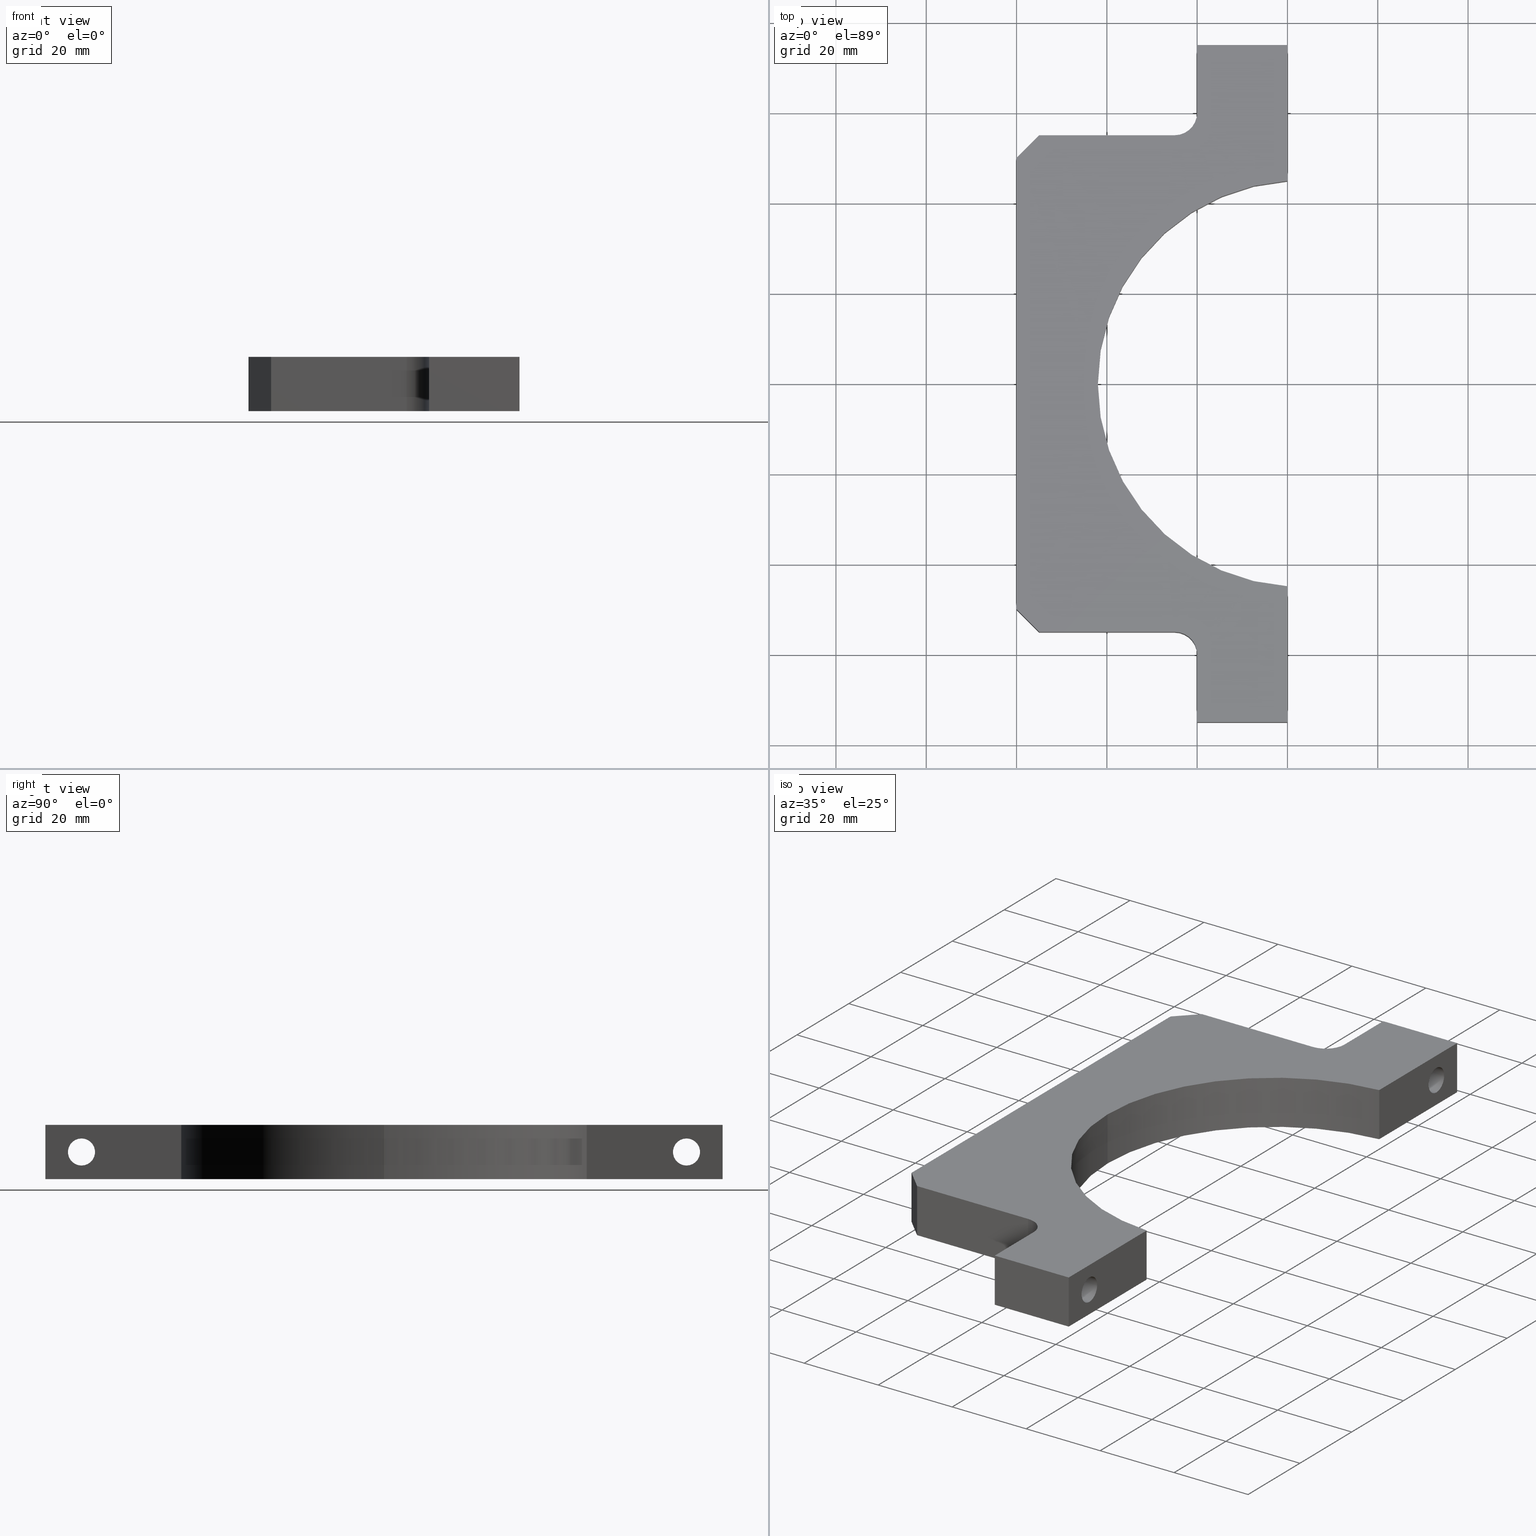
[diagram: canonical four-view strip — front | top / right | iso, engineering-drawing reading convention]
A machine part, canonical four-view strip (front | top / right | iso — engineering-drawing reading convention). The complete STEP part file that produces these views, byte-faithful:
ISO-10303-21;
HEADER;
FILE_DESCRIPTION (( 'STEP AP214' ),
    '1' );
FILE_NAME ('TubeClampTop.STEP',
    '2015-06-11T08:31:04',
    ( '' ),
    ( '' ),
    'SwSTEP 2.0',
    'SolidWorks 2014',
    '' );
FILE_SCHEMA (( 'AUTOMOTIVE_DESIGN' ));
ENDSEC;

DATA;
#1 = ADVANCED_FACE ( 'NONE', ( #332, #558 ), #161, .F. ) ;
#2 = CARTESIAN_POINT ( 'NONE',  ( 0.0000000000000000000, 55.00000000000000700, -6.000000000000000000 ) ) ;
#3 = CARTESIAN_POINT ( 'NONE',  ( 39.99999999999999300, -75.00000000000001400, 6.000000000000000000 ) ) ;
#4 = CARTESIAN_POINT ( 'NONE',  ( 60.00000000000000700, 44.89988864128730500, 6.000000000000000000 ) ) ;
#5 = ADVANCED_FACE ( 'NONE', ( #329, #322 ), #69, .F. ) ;
#6 = PRESENTATION_STYLE_ASSIGNMENT (( #140 ) ) ;
#7 = DIRECTION ( 'NONE',  ( 0.0000000000000000000, 0.0000000000000000000, -1.000000000000000000 ) ) ;
#8 = DIRECTION ( 'NONE',  ( 1.000000000000000000, 0.0000000000000000000, 0.0000000000000000000 ) ) ;
#9 = DIRECTION ( 'NONE',  ( -0.0000000000000000000, 0.0000000000000000000, -1.000000000000000000 ) ) ;
#10 = CARTESIAN_POINT ( 'NONE',  ( 63.00000000000000000, 0.0000000000000000000, 6.000000000000000000 ) ) ;
#11 = CARTESIAN_POINT ( 'NONE',  ( -0.001000000000001000100, 67.00000000000001400, -3.673940397442066800E-016 ) ) ;
#12 = CARTESIAN_POINT ( 'NONE',  ( 17.99999999999999600, 0.0000000000000000000, 6.000000000000000000 ) ) ;
#13 = CARTESIAN_POINT ( 'NONE',  ( 60.00000000000000000, -75.00000000000001400, -6.000000000000000000 ) ) ;
#14 = CARTESIAN_POINT ( 'NONE',  ( 34.99999999999999300, -55.00000000000000700, -6.000000000000000000 ) ) ;
#15 = STYLED_ITEM ( 'NONE', ( #6 ), #33 ) ;
#16 = DIRECTION ( 'NONE',  ( 0.7071067811865455700, -0.7071067811865495700, 0.0000000000000000000 ) ) ;
#17 = DIRECTION ( 'NONE',  ( -0.0000000000000000000, -0.0000000000000000000, -1.000000000000000000 ) ) ;
#18 = CARTESIAN_POINT ( 'NONE',  ( 5.000000000000019500, 55.00000000000000700, 6.000000000000000000 ) ) ;
#19 = CARTESIAN_POINT ( 'NONE',  ( 60.00000000000000000, 75.00000000000001400, 6.000000000000000000 ) ) ;
#20 = CARTESIAN_POINT ( 'NONE',  ( 0.0000000000000000000, -55.00000000000000700, -6.000000000000000000 ) ) ;
#21 = DIRECTION ( 'NONE',  ( -0.0000000000000000000, -0.0000000000000000000, -1.000000000000000000 ) ) ;
#22 = PLANE ( 'NONE',  #409 ) ;
#23 = CARTESIAN_POINT ( 'NONE',  ( 60.00000000000000000, 75.00000000000001400, 6.000000000000000000 ) ) ;
#24 = DIRECTION ( 'NONE',  ( 1.000000000000000000, 0.0000000000000000000, 0.0000000000000000000 ) ) ;
#25 = ADVANCED_FACE ( 'NONE', ( #326 ), #152, .F. ) ;
#26 = DIRECTION ( 'NONE',  ( -0.0000000000000000000, -0.0000000000000000000, -1.000000000000000000 ) ) ;
#27 = AXIS2_PLACEMENT_3D ( 'NONE', #402, #471, #461 ) ;
#28 = DIRECTION ( 'NONE',  ( -0.0000000000000000000, 0.0000000000000000000, 1.000000000000000000 ) ) ;
#29 = ADVANCED_FACE ( 'NONE', ( #320 ), #665, .F. ) ;
#30 = CARTESIAN_POINT ( 'NONE',  ( 34.99999999999999300, -55.00000000000000700, 6.000000000000000000 ) ) ;
#31 = CARTESIAN_POINT ( 'NONE',  ( 63.00000000000000000, 0.0000000000000000000, -6.000000000000000000 ) ) ;
#32 = DIRECTION ( 'NONE',  ( -1.000000000000000000, -0.0000000000000000000, -0.0000000000000000000 ) ) ;
#33 = ADVANCED_BREP_SHAPE_REPRESENTATION ( 'TubeClampTop', ( #481, #201 ), #37 ) ;
#34 = DIRECTION ( 'NONE',  ( 0.0000000000000000000, 0.0000000000000000000, -1.000000000000000000 ) ) ;
#35 = DIRECTION ( 'NONE',  ( 1.000000000000000000, 0.0000000000000000000, 0.0000000000000000000 ) ) ;
#36 = CARTESIAN_POINT ( 'NONE',  ( 60.00000000000001400, 67.00000000000001400, -3.673940397442066800E-016 ) ) ;
#37 =( GEOMETRIC_REPRESENTATION_CONTEXT ( 3 ) GLOBAL_UNCERTAINTY_ASSIGNED_CONTEXT ( ( #97 ) ) GLOBAL_UNIT_ASSIGNED_CONTEXT ( ( #476, #458, #399 ) ) REPRESENTATION_CONTEXT ( 'NONE', 'WORKASPACE' ) );
#38 = CARTESIAN_POINT ( 'NONE',  ( 60.00000000000000000, 75.00000000000001400, -6.000000000000000000 ) ) ;
#39 = CARTESIAN_POINT ( 'NONE',  ( 60.00000000000000000, 75.00000000000001400, 6.000000000000000000 ) ) ;
#40 = CARTESIAN_POINT ( 'NONE',  ( 5.000000000000022200, 55.00000000000000700, 6.000000000000000000 ) ) ;
#41 = DIRECTION ( 'NONE',  ( 1.000000000000000000, 0.0000000000000000000, 0.0000000000000000000 ) ) ;
#42 = CARTESIAN_POINT ( 'NONE',  ( 60.00000000000000000, 75.00000000000001400, -6.000000000000000000 ) ) ;
#43 = APPLICATION_PROTOCOL_DEFINITION ( 'draft international standard', 'automotive_design', 1998, #58 ) ;
#44 = PLANE ( 'NONE',  #389 ) ;
#45 = CARTESIAN_POINT ( 'NONE',  ( 6.499999999999832100, -56.49999999999985100, 6.000000000000000000 ) ) ;
#46 = DIRECTION ( 'NONE',  ( -0.0000000000000000000, -0.0000000000000000000, -1.000000000000000000 ) ) ;
#47 = CARTESIAN_POINT ( 'NONE',  ( 63.00000000000000000, 0.0000000000000000000, -6.000000000000000000 ) ) ;
#48 = CARTESIAN_POINT ( 'NONE',  ( 34.99999999999999300, 55.00000000000000700, 6.000000000000000000 ) ) ;
#49 = AXIS2_PLACEMENT_3D ( 'NONE', #65, #53, #51 ) ;
#50 = CARTESIAN_POINT ( 'NONE',  ( 60.00000000000000700, 44.89988864128730500, 6.000000000000000000 ) ) ;
#51 = DIRECTION ( 'NONE',  ( 0.0000000000000000000, -0.0000000000000000000, -1.000000000000000000 ) ) ;
#52 = CARTESIAN_POINT ( 'NONE',  ( 0.0000000000000000000, -49.99999999999998600, 6.000000000000000000 ) ) ;
#53 = DIRECTION ( 'NONE',  ( 0.0000000000000000000, -1.000000000000000000, 0.0000000000000000000 ) ) ;
#54 = CARTESIAN_POINT ( 'NONE',  ( 5.000000000000019500, 55.00000000000000700, -6.000000000000000000 ) ) ;
#55 = PLANE ( 'NONE',  #49 ) ;
#56 = ADVANCED_FACE ( 'NONE', ( #319 ), #313, .F. ) ;
#57 = CARTESIAN_POINT ( 'NONE',  ( 39.99999999999999300, -67.00000000000001400, -3.000000000000003100 ) ) ;
#58 = APPLICATION_CONTEXT ( 'automotive_design' ) ;
#59 = DIRECTION ( 'NONE',  ( 2.305271838105247500E-016, -1.000000000000000000, 0.0000000000000000000 ) ) ;
#60 = DIRECTION ( 'NONE',  ( 2.305271838105247500E-016, 1.000000000000000000, 0.0000000000000000000 ) ) ;
#61 = CARTESIAN_POINT ( 'NONE',  ( 0.0000000000000000000, 50.00000000000001400, 6.000000000000000000 ) ) ;
#62 = DIRECTION ( 'NONE',  ( -2.305271838105247500E-016, 1.000000000000000000, -0.0000000000000000000 ) ) ;
#63 = CARTESIAN_POINT ( 'NONE',  ( -0.001000000000001000100, -67.00000000000001400, -6.123233995736806700E-016 ) ) ;
#64 = DIRECTION ( 'NONE',  ( -0.0000000000000000000, -0.0000000000000000000, -1.000000000000000000 ) ) ;
#65 = CARTESIAN_POINT ( 'NONE',  ( 0.0000000000000000000, 55.00000000000000700, 6.000000000000000000 ) ) ;
#66 = DIRECTION ( 'NONE',  ( -1.000000000000000000, -2.305271838105247500E-016, 0.0000000000000000000 ) ) ;
#67 = AXIS2_PLACEMENT_3D ( 'NONE', #31, #26, #24 ) ;
#68 = DIRECTION ( 'NONE',  ( -0.0000000000000000000, -0.0000000000000000000, -1.000000000000000000 ) ) ;
#69 = PLANE ( 'NONE',  #446 ) ;
#70 = DIRECTION ( 'NONE',  ( 0.0000000000000000000, 0.0000000000000000000, -1.000000000000000000 ) ) ;
#71 = DIRECTION ( 'NONE',  ( 1.000000000000000000, 0.0000000000000000000, 0.0000000000000000000 ) ) ;
#72 = DIRECTION ( 'NONE',  ( -0.0000000000000000000, -0.0000000000000000000, -1.000000000000000000 ) ) ;
#73 = DIRECTION ( 'NONE',  ( 0.0000000000000000000, 0.0000000000000000000, -1.000000000000000000 ) ) ;
#74 = DIRECTION ( 'NONE',  ( 1.000000000000000000, 0.0000000000000000000, 0.0000000000000000000 ) ) ;
#75 = CARTESIAN_POINT ( 'NONE',  ( 0.0000000000000000000, 55.00000000000000700, 6.000000000000000000 ) ) ;
#76 = DIRECTION ( 'NONE',  ( -0.0000000000000000000, -0.0000000000000000000, -1.000000000000000000 ) ) ;
#77 = ADVANCED_FACE ( 'NONE', ( #328, #312 ), #548, .F. ) ;
#78 = CARTESIAN_POINT ( 'NONE',  ( 63.00000000000000000, 0.0000000000000000000, 6.000000000000000000 ) ) ;
#79 = PRODUCT_CONTEXT ( 'NONE', #378, 'mechanical' ) ;
#80 = DIRECTION ( 'NONE',  ( 1.000000000000000000, 0.0000000000000000000, 0.0000000000000000000 ) ) ;
#81 = VECTOR ( 'NONE', #576, 1000.000000000000000 ) ;
#82 = COLOUR_RGB ( '',1.000000000000000000, 1.000000000000000000, 1.000000000000000000 ) ;
#83 = VECTOR ( 'NONE', #586, 1000.000000000000000 ) ;
#84 = DIRECTION ( 'NONE',  ( 1.000000000000000000, -0.0000000000000000000, -0.0000000000000000000 ) ) ;
#85 = DIRECTION ( 'NONE',  ( 0.0000000000000000000, 0.0000000000000000000, 1.000000000000000000 ) ) ;
#86 = VECTOR ( 'NONE', #672, 1000.000000000000000 ) ;
#87 = ORIENTED_EDGE ( 'NONE', *, *, #480, .F. ) ;
#88 = VERTEX_POINT ( 'NONE', #551 ) ;
#89 = CARTESIAN_POINT ( 'NONE',  ( 60.00000000000001400, -67.00000000000001400, -6.123233995736806700E-016 ) ) ;
#90 = LINE ( 'NONE', #631, #83 ) ;
#91 = CARTESIAN_POINT ( 'NONE',  ( 60.00000000000000000, -75.00000000000001400, -6.000000000000000000 ) ) ;
#92 = ORIENTED_EDGE ( 'NONE', *, *, #590, .F. ) ;
#93 = LINE ( 'NONE', #30, #86 ) ;
#94 = CARTESIAN_POINT ( 'NONE',  ( 60.00000000000000700, -44.89988864128729800, 6.000000000000000000 ) ) ;
#95 = SHAPE_DEFINITION_REPRESENTATION ( #444, #33 ) ;
#96 = CARTESIAN_POINT ( 'NONE',  ( 60.00000000000000000, -75.00000000000001400, 6.000000000000000000 ) ) ;
#97 = UNCERTAINTY_MEASURE_WITH_UNIT (LENGTH_MEASURE( 1.000000000000000100E-005 ), #476, 'distance_accuracy_value', 'NONE');
#98 = DIRECTION ( 'NONE',  ( 2.305271838105247500E-016, 1.000000000000000000, 0.0000000000000000000 ) ) ;
#99 = CARTESIAN_POINT ( 'NONE',  ( 39.99999999999999300, -55.00000000000000700, 6.000000000000000000 ) ) ;
#100 = DIRECTION ( 'NONE',  ( 1.000000000000000000, 0.0000000000000000000, 0.0000000000000000000 ) ) ;
#101 = CARTESIAN_POINT ( 'NONE',  ( 39.99999999999999300, 67.00000000000001400, -3.000000000000001800 ) ) ;
#102 = VECTOR ( 'NONE', #674, 1000.000000000000000 ) ;
#103 = DIRECTION ( 'NONE',  ( -0.0000000000000000000, -0.0000000000000000000, -1.000000000000000000 ) ) ;
#104 = DIRECTION ( 'NONE',  ( -0.0000000000000000000, -1.000000000000000000, -0.0000000000000000000 ) ) ;
#105 = VECTOR ( 'NONE', #626, 1000.000000000000000 ) ;
#106 = PRESENTATION_STYLE_ASSIGNMENT (( #162 ) ) ;
#107 = CARTESIAN_POINT ( 'NONE',  ( 17.99999999999999600, 0.0000000000000000000, 6.000000000000000000 ) ) ;
#108 = COLOUR_RGB ( '',1.000000000000000000, 1.000000000000000000, 1.000000000000000000 ) ;
#109 = DIRECTION ( 'NONE',  ( 1.000000000000000000, 0.0000000000000000000, 0.0000000000000000000 ) ) ;
#110 = DIRECTION ( 'NONE',  ( 0.0000000000000000000, 0.0000000000000000000, -1.000000000000000000 ) ) ;
#111 = CARTESIAN_POINT ( 'NONE',  ( 60.00000000000000000, -75.00000000000001400, 6.000000000000000000 ) ) ;
#112 = LINE ( 'NONE', #676, #113 ) ;
#113 = VECTOR ( 'NONE', #523, 1000.000000000000000 ) ;
#114 = CARTESIAN_POINT ( 'NONE',  ( 39.99999999999999300, -55.00000000000000700, -6.000000000000000000 ) ) ;
#115 = CARTESIAN_POINT ( 'NONE',  ( 60.00000000000001400, -67.00000000000001400, 3.000000000000002200 ) ) ;
#116 = SURFACE_STYLE_FILL_AREA ( #296 ) ;
#117 = LINE ( 'NONE', #678, #102 ) ;
#118 = LINE ( 'NONE', #75, #120 ) ;
#119 = DIRECTION ( 'NONE',  ( 0.0000000000000000000, 0.0000000000000000000, -1.000000000000000000 ) ) ;
#120 = VECTOR ( 'NONE', #32, 1000.000000000000000 ) ;
#121 = ADVANCED_FACE ( 'NONE', ( #327, #311 ), #486, .F. ) ;
#122 = LINE ( 'NONE', #52, #81 ) ;
#123 = ORIENTED_EDGE ( 'NONE', *, *, #531, .F. ) ;
#124 = VERTEX_POINT ( 'NONE', #513 ) ;
#125 = LINE ( 'NONE', #107, #126 ) ;
#126 = VECTOR ( 'NONE', #68, 1000.000000000000000 ) ;
#127 =( NAMED_UNIT ( * ) SI_UNIT ( $, .STERADIAN. ) SOLID_ANGLE_UNIT ( ) );
#128 = DIRECTION ( 'NONE',  ( 1.000000000000000000, 0.0000000000000000000, 0.0000000000000000000 ) ) ;
#129 = LINE ( 'NONE', #18, #148 ) ;
#130 = CARTESIAN_POINT ( 'NONE',  ( 60.00000000000001400, 67.00000000000001400, -3.673940397442066800E-016 ) ) ;
#131 = CIRCLE ( 'NONE', #175, 3.000000000000001300 ) ;
#132 = VECTOR ( 'NONE', #223, 1000.000000000000000 ) ;
#133 =( NAMED_UNIT ( * ) PLANE_ANGLE_UNIT ( ) SI_UNIT ( $, .RADIAN. ) );
#134 = LINE ( 'NONE', #300, #150 ) ;
#135 = VECTOR ( 'NONE', #354, 1000.000000000000000 ) ;
#136 = ADVANCED_FACE ( 'NONE', ( #316 ), #304, .F. ) ;
#137 =( LENGTH_UNIT ( ) NAMED_UNIT ( * ) SI_UNIT ( .MILLI., .METRE. ) );
#138 = CIRCLE ( 'NONE', #214, 3.000000000000002700 ) ;
#139 = FACE_OUTER_BOUND ( 'NONE', #543, .T. ) ;
#140 = SURFACE_STYLE_USAGE ( .BOTH. , #290 ) ;
#141 = ORIENTED_EDGE ( 'NONE', *, *, #542, .T. ) ;
#142 = LINE ( 'NONE', #2, #147 ) ;
#143 = VECTOR ( 'NONE', #21, 1000.000000000000000 ) ;
#144 = LINE ( 'NONE', #50, #143 ) ;
#145 = LINE ( 'NONE', #465, #105 ) ;
#146 = DIRECTION ( 'NONE',  ( 1.000000000000000000, 0.0000000000000000000, -0.0000000000000000000 ) ) ;
#147 = VECTOR ( 'NONE', #633, 1000.000000000000000 ) ;
#148 = VECTOR ( 'NONE', #203, 1000.000000000000000 ) ;
#149 = CIRCLE ( 'NONE', #67, 45.00000000000001400 ) ;
#150 = VECTOR ( 'NONE', #172, 1000.000000000000000 ) ;
#151 = CIRCLE ( 'NONE', #173, 45.00000000000001400 ) ;
#152 = PLANE ( 'NONE',  #434 ) ;
#153 =( NAMED_UNIT ( * ) SI_UNIT ( $, .STERADIAN. ) SOLID_ANGLE_UNIT ( ) );
#154 = CYLINDRICAL_SURFACE ( 'NONE', #179, 3.000000000000001300 ) ;
#155 = FACE_OUTER_BOUND ( 'NONE', #342, .T. ) ;
#156 =( NAMED_UNIT ( * ) PLANE_ANGLE_UNIT ( ) SI_UNIT ( $, .RADIAN. ) );
#157 = LINE ( 'NONE', #220, #132 ) ;
#158 = LINE ( 'NONE', #351, #135 ) ;
#159 =( LENGTH_UNIT ( ) NAMED_UNIT ( * ) SI_UNIT ( .MILLI., .METRE. ) );
#160 = CIRCLE ( 'NONE', #247, 3.000000000000001300 ) ;
#161 = PLANE ( 'NONE',  #455 ) ;
#162 = SURFACE_STYLE_USAGE ( .BOTH. , #166 ) ;
#163 = VECTOR ( 'NONE', #557, 1000.000000000000000 ) ;
#164 = CIRCLE ( 'NONE', #237, 3.000000000000002700 ) ;
#165 = VECTOR ( 'NONE', #467, 1000.000000000000100 ) ;
#166 = SURFACE_SIDE_STYLE ('',( #257 ) ) ;
#167 = DIRECTION ( 'NONE',  ( -1.000000000000000000, -0.0000000000000000000, -0.0000000000000000000 ) ) ;
#168 = FACE_OUTER_BOUND ( 'NONE', #469, .T. ) ;
#169 = CYLINDRICAL_SURFACE ( 'NONE', #233, 45.00000000000000700 ) ;
#170 = FILL_AREA_STYLE ('',( #273 ) ) ;
#171 = LINE ( 'NONE', #514, #165 ) ;
#172 = DIRECTION ( 'NONE',  ( 1.000000000000000000, -0.0000000000000000000, -0.0000000000000000000 ) ) ;
#173 = AXIS2_PLACEMENT_3D ( 'NONE', #78, #76, #74 ) ;
#174 = VECTOR ( 'NONE', #511, 1000.000000000000100 ) ;
#175 = AXIS2_PLACEMENT_3D ( 'NONE', #130, #128, #119 ) ;
#176 = LINE ( 'NONE', #517, #174 ) ;
#177 = FACE_OUTER_BOUND ( 'NONE', #487, .T. ) ;
#178 = LINE ( 'NONE', #554, #163 ) ;
#179 = AXIS2_PLACEMENT_3D ( 'NONE', #441, #460, #400 ) ;
#180 = CIRCLE ( 'NONE', #248, 4.999999999999997300 ) ;
#181 = VECTOR ( 'NONE', #632, 1000.000000000000100 ) ;
#182 = CIRCLE ( 'NONE', #272, 4.999999999999997300 ) ;
#183 = VECTOR ( 'NONE', #708, 1000.000000000000000 ) ;
#184 = LINE ( 'NONE', #45, #181 ) ;
#185 = CARTESIAN_POINT ( 'NONE',  ( 39.99999999999999300, -75.00000000000001400, 6.000000000000000000 ) ) ;
#186 = CIRCLE ( 'NONE', #255, 4.999999999999997300 ) ;
#187 = DIRECTION ( 'NONE',  ( -1.000000000000000000, -0.0000000000000000000, -0.0000000000000000000 ) ) ;
#188 = VECTOR ( 'NONE', #104, 1000.000000000000000 ) ;
#189 = LINE ( 'NONE', #345, #188 ) ;
#190 = LINE ( 'NONE', #368, #192 ) ;
#191 = PRODUCT_RELATED_PRODUCT_CATEGORY ( 'part', '', ( #407 ) ) ;
#192 = VECTOR ( 'NONE', #28, 1000.000000000000000 ) ;
#193 = DIRECTION ( 'NONE',  ( 0.0000000000000000000, -0.0000000000000000000, 1.000000000000000000 ) ) ;
#194 = VECTOR ( 'NONE', #298, 1000.000000000000100 ) ;
#195 = PRODUCT_DEFINITION_FORMATION_WITH_SPECIFIED_SOURCE ( 'ANY', '', #407, .NOT_KNOWN. ) ;
#196 = LINE ( 'NONE', #661, #194 ) ;
#197 = PRODUCT_DEFINITION ( 'UNKNOWN', '', #195, #617 ) ;
#198 = CIRCLE ( 'NONE', #287, 3.000000000000001300 ) ;
#199 = DIRECTION ( 'NONE',  ( -0.0000000000000000000, -0.0000000000000000000, -1.000000000000000000 ) ) ;
#200 = DIRECTION ( 'NONE',  ( 0.0000000000000000000, 0.0000000000000000000, -1.000000000000000000 ) ) ;
#201 = AXIS2_PLACEMENT_3D ( 'NONE', #530, #85, #80 ) ;
#202 = VECTOR ( 'NONE', #680, 1000.000000000000000 ) ;
#203 = DIRECTION ( 'NONE',  ( 0.0000000000000000000, 0.0000000000000000000, 1.000000000000000000 ) ) ;
#204 = ADVANCED_FACE ( 'NONE', ( #318 ), #22, .F. ) ;
#205 = LINE ( 'NONE', #432, #183 ) ;
#206 = CYLINDRICAL_SURFACE ( 'NONE', #276, 3.000000000000002700 ) ;
#207 = LINE ( 'NONE', #584, #209 ) ;
#208 = DIRECTION ( 'NONE',  ( -1.000000000000000000, -0.0000000000000000000, -0.0000000000000000000 ) ) ;
#209 = VECTOR ( 'NONE', #711, 1000.000000000000000 ) ;
#210 = CIRCLE ( 'NONE', #302, 4.999999999999997300 ) ;
#211 = CARTESIAN_POINT ( 'NONE',  ( 39.99999999999999300, 67.00000000000001400, -3.673940397442066800E-016 ) ) ;
#212 = CYLINDRICAL_SURFACE ( 'NONE', #282, 3.000000000000001300 ) ;
#213 = LINE ( 'NONE', #675, #202 ) ;
#214 = AXIS2_PLACEMENT_3D ( 'NONE', #291, #284, #274 ) ;
#215 = FACE_OUTER_BOUND ( 'NONE', #604, .T. ) ;
#216 = LINE ( 'NONE', #650, #222 ) ;
#217 = VECTOR ( 'NONE', #714, 1000.000000000000000 ) ;
#218 = FACE_OUTER_BOUND ( 'NONE', #585, .T. ) ;
#219 = VECTOR ( 'NONE', #8, 1000.000000000000000 ) ;
#220 = CARTESIAN_POINT ( 'NONE',  ( -0.001000000000001000100, 67.00000000000001400, 3.000000000000000900 ) ) ;
#221 = ADVANCED_FACE ( 'NONE', ( #308 ), #44, .F. ) ;
#222 = VECTOR ( 'NONE', #187, 1000.000000000000000 ) ;
#223 = DIRECTION ( 'NONE',  ( 1.000000000000000000, -0.0000000000000000000, -0.0000000000000000000 ) ) ;
#224 = VECTOR ( 'NONE', #17, 1000.000000000000000 ) ;
#225 =( GEOMETRIC_REPRESENTATION_CONTEXT ( 3 ) GLOBAL_UNCERTAINTY_ASSIGNED_CONTEXT ( ( #667 ) ) GLOBAL_UNIT_ASSIGNED_CONTEXT ( ( #137, #133, #127 ) ) REPRESENTATION_CONTEXT ( 'NONE', 'WORKASPACE' ) );
#226 = LINE ( 'NONE', #23, #217 ) ;
#227 = VECTOR ( 'NONE', #62, 1000.000000000000000 ) ;
#228 = LINE ( 'NONE', #20, #219 ) ;
#229 = LINE ( 'NONE', #39, #224 ) ;
#230 = MECHANICAL_DESIGN_GEOMETRIC_PRESENTATION_REPRESENTATION (  '', ( #15 ), #225 ) ;
#231 = LINE ( 'NONE', #38, #227 ) ;
#232 = CIRCLE ( 'NONE', #314, 45.00000000000001400 ) ;
#233 = AXIS2_PLACEMENT_3D ( 'NONE', #612, #72, #607 ) ;
#234 = VECTOR ( 'NONE', #60, 1000.000000000000000 ) ;
#235 = CIRCLE ( 'NONE', #303, 3.000000000000001300 ) ;
#236 = VECTOR ( 'NONE', #64, 1000.000000000000000 ) ;
#237 = AXIS2_PLACEMENT_3D ( 'NONE', #396, #387, #382 ) ;
#238 = CIRCLE ( 'NONE', #315, 45.00000000000001400 ) ;
#239 = VECTOR ( 'NONE', #98, 1000.000000000000000 ) ;
#240 = LINE ( 'NONE', #96, #234 ) ;
#241 = LINE ( 'NONE', #94, #236 ) ;
#242 = VECTOR ( 'NONE', #100, 1000.000000000000000 ) ;
#243 = LINE ( 'NONE', #91, #239 ) ;
#244 = EDGE_LOOP ( 'NONE', ( #679, #608, #324, #349 ) ) ;
#245 = VECTOR ( 'NONE', #103, 1000.000000000000000 ) ;
#246 = DIRECTION ( 'NONE',  ( 1.000000000000000000, -0.0000000000000000000, -0.0000000000000000000 ) ) ;
#247 = AXIS2_PLACEMENT_3D ( 'NONE', #211, #208, #200 ) ;
#248 = AXIS2_PLACEMENT_3D ( 'NONE', #580, #570, #560 ) ;
#249 = LINE ( 'NONE', #111, #245 ) ;
#250 = DIRECTION ( 'NONE',  ( -0.0000000000000000000, -0.0000000000000000000, -1.000000000000000000 ) ) ;
#251 = EDGE_CURVE ( 'NONE', #475, #124, #299, .T. ) ;
#252 = EDGE_CURVE ( 'NONE', #356, #386, #301, .T. ) ;
#253 = CARTESIAN_POINT ( 'NONE',  ( 39.99999999999999300, -75.00000000000001400, -6.000000000000000000 ) ) ;
#254 = VERTEX_POINT ( 'NONE', #655 ) ;
#255 = AXIS2_PLACEMENT_3D ( 'NONE', #265, #623, #618 ) ;
#256 = LINE ( 'NONE', #185, #242 ) ;
#257 = SURFACE_STYLE_FILL_AREA ( #170 ) ;
#258 = VECTOR ( 'NONE', #250, 1000.000000000000000 ) ;
#259 = DIRECTION ( 'NONE',  ( 1.000000000000000000, 0.0000000000000000000, 0.0000000000000000000 ) ) ;
#260 = DIRECTION ( 'NONE',  ( 1.000000000000000000, 0.0000000000000000000, 0.0000000000000000000 ) ) ;
#261 = CYLINDRICAL_SURFACE ( 'NONE', #335, 4.999999999999997300 ) ;
#262 = LINE ( 'NONE', #283, #258 ) ;
#263 = CARTESIAN_POINT ( 'NONE',  ( -0.001000000000001000100, -67.00000000000001400, -6.123233995736806700E-016 ) ) ;
#264 = FACE_OUTER_BOUND ( 'NONE', #603, .T. ) ;
#265 = CARTESIAN_POINT ( 'NONE',  ( 34.99999999999999300, -60.00000000000000700, 6.000000000000000000 ) ) ;
#266 = CIRCLE ( 'NONE', #317, 3.000000000000002700 ) ;
#267 = VECTOR ( 'NONE', #259, 1000.000000000000000 ) ;
#268 = CARTESIAN_POINT ( 'NONE',  ( 4.999999999999999100, -55.00000000000000700, 6.000000000000000000 ) ) ;
#269 = EDGE_LOOP ( 'NONE', ( #343, #390, #478, #546 ) ) ;
#270 = VECTOR ( 'NONE', #344, 1000.000000000000000 ) ;
#271 = VECTOR ( 'NONE', #339, 1000.000000000000000 ) ;
#272 = AXIS2_PLACEMENT_3D ( 'NONE', #507, #503, #260 ) ;
#273 = FILL_AREA_STYLE_COLOUR ( '', #108 ) ;
#274 = DIRECTION ( 'NONE',  ( 0.0000000000000000000, 0.0000000000000000000, -1.000000000000000000 ) ) ;
#275 = FACE_OUTER_BOUND ( 'NONE', #404, .T. ) ;
#276 = AXIS2_PLACEMENT_3D ( 'NONE', #63, #84, #110 ) ;
#277 = LINE ( 'NONE', #353, #270 ) ;
#278 = CYLINDRICAL_SURFACE ( 'NONE', #348, 4.999999999999997300 ) ;
#279 = DIRECTION ( 'NONE',  ( 0.0000000000000000000, 0.0000000000000000000, -1.000000000000000000 ) ) ;
#280 = VECTOR ( 'NONE', #506, 1000.000000000000000 ) ;
#281 = LINE ( 'NONE', #253, #267 ) ;
#282 = AXIS2_PLACEMENT_3D ( 'NONE', #11, #524, #653 ) ;
#283 = CARTESIAN_POINT ( 'NONE',  ( 39.99999999999999300, -75.00000000000001400, 6.000000000000000000 ) ) ;
#284 = DIRECTION ( 'NONE',  ( -1.000000000000000000, -0.0000000000000000000, 0.0000000000000000000 ) ) ;
#285 = UNCERTAINTY_MEASURE_WITH_UNIT (LENGTH_MEASURE( 1.000000000000000100E-005 ), #159, 'distance_accuracy_value', 'NONE');
#286 = CIRCLE ( 'NONE', #373, 3.000000000000002700 ) ;
#287 = AXIS2_PLACEMENT_3D ( 'NONE', #371, #167, #454 ) ;
#288 = ADVANCED_FACE ( 'NONE', ( #292 ), #645, .T. ) ;
#289 = FACE_OUTER_BOUND ( 'NONE', #613, .T. ) ;
#290 = SURFACE_SIDE_STYLE ('',( #116 ) ) ;
#291 = CARTESIAN_POINT ( 'NONE',  ( 39.99999999999999300, -67.00000000000001400, -6.123233995736806700E-016 ) ) ;
#292 = FACE_OUTER_BOUND ( 'NONE', #474, .T. ) ;
#293 = FACE_OUTER_BOUND ( 'NONE', #526, .T. ) ;
#294 = PRESENTATION_LAYER_ASSIGNMENT (  '', '', ( #15 ) ) ;
#295 = VECTOR ( 'NONE', #715, 1000.000000000000000 ) ;
#296 = FILL_AREA_STYLE ('',( #310 ) ) ;
#297 = LINE ( 'NONE', #450, #280 ) ;
#298 = DIRECTION ( 'NONE',  ( -0.7071067811865495700, -0.7071067811865455700, 0.0000000000000000000 ) ) ;
#299 = LINE ( 'NONE', #664, #309 ) ;
#300 = CARTESIAN_POINT ( 'NONE',  ( -0.001000000000001000100, 67.00000000000001400, -3.000000000000001800 ) ) ;
#301 = LINE ( 'NONE', #705, #295 ) ;
#302 = AXIS2_PLACEMENT_3D ( 'NONE', #656, #501, #392 ) ;
#303 = AXIS2_PLACEMENT_3D ( 'NONE', #36, #35, #34 ) ;
#304 = CYLINDRICAL_SURFACE ( 'NONE', #412, 3.000000000000002700 ) ;
#305 = ADVANCED_FACE ( 'NONE', ( #293 ), #695, .F. ) ;
#306 = CARTESIAN_POINT ( 'NONE',  ( 60.00000000000000000, 75.00000000000001400, 6.000000000000000000 ) ) ;
#307 = LINE ( 'NONE', #114, #271 ) ;
#308 = FACE_OUTER_BOUND ( 'NONE', #574, .T. ) ;
#309 = VECTOR ( 'NONE', #658, 1000.000000000000000 ) ;
#310 = FILL_AREA_STYLE_COLOUR ( '', #82 ) ;
#311 = FACE_OUTER_BOUND ( 'NONE', #588, .T. ) ;
#312 = FACE_OUTER_BOUND ( 'NONE', #244, .T. ) ;
#313 = CYLINDRICAL_SURFACE ( 'NONE', #428, 45.00000000000000700 ) ;
#314 = AXIS2_PLACEMENT_3D ( 'NONE', #47, #46, #41 ) ;
#315 = AXIS2_PLACEMENT_3D ( 'NONE', #10, #199, #109 ) ;
#316 = FACE_OUTER_BOUND ( 'NONE', #525, .T. ) ;
#317 = AXIS2_PLACEMENT_3D ( 'NONE', #89, #71, #70 ) ;
#318 = FACE_OUTER_BOUND ( 'NONE', #380, .T. ) ;
#319 = FACE_OUTER_BOUND ( 'NONE', #269, .T. ) ;
#320 = FACE_OUTER_BOUND ( 'NONE', #346, .T. ) ;
#321 =( GEOMETRIC_REPRESENTATION_CONTEXT ( 3 ) GLOBAL_UNCERTAINTY_ASSIGNED_CONTEXT ( ( #285 ) ) GLOBAL_UNIT_ASSIGNED_CONTEXT ( ( #159, #156, #153 ) ) REPRESENTATION_CONTEXT ( 'NONE', 'WORKASPACE' ) );
#322 = FACE_OUTER_BOUND ( 'NONE', #438, .T. ) ;
#323 = DIRECTION ( 'NONE',  ( 1.000000000000000000, 0.0000000000000000000, 0.0000000000000000000 ) ) ;
#324 = ORIENTED_EDGE ( 'NONE', *, *, #498, .F. ) ;
#325 = DIRECTION ( 'NONE',  ( 1.000000000000000000, 0.0000000000000000000, 0.0000000000000000000 ) ) ;
#326 = FACE_OUTER_BOUND ( 'NONE', #609, .T. ) ;
#327 = FACE_BOUND ( 'NONE', #636, .T. ) ;
#328 = FACE_BOUND ( 'NONE', #337, .T. ) ;
#329 = FACE_BOUND ( 'NONE', #549, .T. ) ;
#330 = DIRECTION ( 'NONE',  ( -0.0000000000000000000, 0.0000000000000000000, 1.000000000000000000 ) ) ;
#331 = MECHANICAL_DESIGN_GEOMETRIC_PRESENTATION_REPRESENTATION (  '', ( #338 ), #321 ) ;
#332 = FACE_BOUND ( 'NONE', #485, .T. ) ;
#333 = VERTEX_POINT ( 'NONE', #622 ) ;
#334 = ORIENTED_EDGE ( 'NONE', *, *, #716, .F. ) ;
#335 = AXIS2_PLACEMENT_3D ( 'NONE', #367, #330, #323 ) ;
#336 = ORIENTED_EDGE ( 'NONE', *, *, #589, .F. ) ;
#337 = EDGE_LOOP ( 'NONE', ( #547, #452 ) ) ;
#338 = STYLED_ITEM ( 'NONE', ( #106 ), #481 ) ;
#339 = DIRECTION ( 'NONE',  ( 0.0000000000000000000, -1.000000000000000000, 0.0000000000000000000 ) ) ;
#340 = ORIENTED_EDGE ( 'NONE', *, *, #542, .F. ) ;
#341 = AXIS2_PLACEMENT_3D ( 'NONE', #426, #419, #370 ) ;
#342 = EDGE_LOOP ( 'NONE', ( #435, #447, #713, #691 ) ) ;
#343 = ORIENTED_EDGE ( 'NONE', *, *, #624, .F. ) ;
#344 = DIRECTION ( 'NONE',  ( -0.0000000000000000000, 0.0000000000000000000, -1.000000000000000000 ) ) ;
#345 = CARTESIAN_POINT ( 'NONE',  ( 39.99999999999999300, 55.00000000000000700, -6.000000000000000000 ) ) ;
#346 = EDGE_LOOP ( 'NONE', ( #718, #334, #657, #449 ) ) ;
#347 = ORIENTED_EDGE ( 'NONE', *, *, #484, .T. ) ;
#348 = AXIS2_PLACEMENT_3D ( 'NONE', #559, #516, #545 ) ;
#349 = ORIENTED_EDGE ( 'NONE', *, *, #483, .T. ) ;
#350 = CARTESIAN_POINT ( 'NONE',  ( 39.99999999999999300, 55.00000000000000700, 6.000000000000000000 ) ) ;
#351 = CARTESIAN_POINT ( 'NONE',  ( -0.001000000000001000100, -67.00000000000001400, 3.000000000000002200 ) ) ;
#352 = ORIENTED_EDGE ( 'NONE', *, *, #403, .F. ) ;
#353 = CARTESIAN_POINT ( 'NONE',  ( 39.99999999999999300, -60.00000000000000700, -6.000000000000000000 ) ) ;
#354 = DIRECTION ( 'NONE',  ( 1.000000000000000000, -0.0000000000000000000, -0.0000000000000000000 ) ) ;
#355 = EDGE_LOOP ( 'NONE', ( #352, #594, #528, #383 ) ) ;
#356 = VERTEX_POINT ( 'NONE', #616 ) ;
#357 = PRESENTATION_LAYER_ASSIGNMENT (  '', '', ( #338 ) ) ;
#358 = VERTEX_POINT ( 'NONE', #602 ) ;
#359 = AXIS2_PLACEMENT_3D ( 'NONE', #652, #606, #605 ) ;
#360 = VERTEX_POINT ( 'NONE', #564 ) ;
#361 = ORIENTED_EDGE ( 'NONE', *, *, #536, .F. ) ;
#362 = ORIENTED_EDGE ( 'NONE', *, *, #509, .F. ) ;
#363 = DIRECTION ( 'NONE',  ( 0.0000000000000000000, 1.000000000000000000, 0.0000000000000000000 ) ) ;
#364 = ORIENTED_EDGE ( 'NONE', *, *, #491, .T. ) ;
#365 = ORIENTED_EDGE ( 'NONE', *, *, #634, .F. ) ;
#366 = VERTEX_POINT ( 'NONE', #556 ) ;
#367 = CARTESIAN_POINT ( 'NONE',  ( 34.99999999999999300, 60.00000000000000700, 6.000000000000000000 ) ) ;
#368 = CARTESIAN_POINT ( 'NONE',  ( 39.99999999999999300, 60.00000000000000700, 6.000000000000000000 ) ) ;
#369 = EDGE_CURVE ( 'NONE', #405, #687, #286, .T. ) ;
#370 = DIRECTION ( 'NONE',  ( 0.0000000000000000000, -0.0000000000000000000, 1.000000000000000000 ) ) ;
#371 = CARTESIAN_POINT ( 'NONE',  ( 39.99999999999999300, 67.00000000000001400, -3.673940397442066800E-016 ) ) ;
#372 = ORIENTED_EDGE ( 'NONE', *, *, #550, .T. ) ;
#373 = AXIS2_PLACEMENT_3D ( 'NONE', #540, #538, #518 ) ;
#374 = VERTEX_POINT ( 'NONE', #595 ) ;
#375 = AXIS2_PLACEMENT_3D ( 'NONE', #700, #641, #637 ) ;
#376 = ORIENTED_EDGE ( 'NONE', *, *, #624, .T. ) ;
#377 = ORIENTED_EDGE ( 'NONE', *, *, #539, .F. ) ;
#378 = APPLICATION_CONTEXT ( 'automotive_design' ) ;
#379 = ORIENTED_EDGE ( 'NONE', *, *, #496, .T. ) ;
#380 = EDGE_LOOP ( 'NONE', ( #566, #393, #411, #596 ) ) ;
#381 = VERTEX_POINT ( 'NONE', #597 ) ;
#382 = DIRECTION ( 'NONE',  ( 0.0000000000000000000, 0.0000000000000000000, -1.000000000000000000 ) ) ;
#383 = ORIENTED_EDGE ( 'NONE', *, *, #477, .F. ) ;
#384 = ADVANCED_FACE ( 'NONE', ( #289 ), #278, .F. ) ;
#385 = ORIENTED_EDGE ( 'NONE', *, *, #709, .T. ) ;
#386 = VERTEX_POINT ( 'NONE', #500 ) ;
#387 = DIRECTION ( 'NONE',  ( 1.000000000000000000, 0.0000000000000000000, 0.0000000000000000000 ) ) ;
#388 = VERTEX_POINT ( 'NONE', #497 ) ;
#389 = AXIS2_PLACEMENT_3D ( 'NONE', #719, #710, #707 ) ;
#390 = ORIENTED_EDGE ( 'NONE', *, *, #628, .T. ) ;
#391 = APPLICATION_PROTOCOL_DEFINITION ( 'draft international standard', 'automotive_design', 1998, #378 ) ;
#392 = DIRECTION ( 'NONE',  ( 1.000000000000000000, 0.0000000000000000000, 0.0000000000000000000 ) ) ;
#393 = ORIENTED_EDGE ( 'NONE', *, *, #483, .F. ) ;
#394 = VERTEX_POINT ( 'NONE', #510 ) ;
#395 = ORIENTED_EDGE ( 'NONE', *, *, #252, .F. ) ;
#396 = CARTESIAN_POINT ( 'NONE',  ( 60.00000000000001400, -67.00000000000001400, -6.123233995736806700E-016 ) ) ;
#397 = ORIENTED_EDGE ( 'NONE', *, *, #536, .T. ) ;
#398 = ORIENTED_EDGE ( 'NONE', *, *, #587, .T. ) ;
#399 =( NAMED_UNIT ( * ) SI_UNIT ( $, .STERADIAN. ) SOLID_ANGLE_UNIT ( ) );
#400 = DIRECTION ( 'NONE',  ( 0.0000000000000000000, 0.0000000000000000000, -1.000000000000000000 ) ) ;
#401 = ORIENTED_EDGE ( 'NONE', *, *, #508, .F. ) ;
#402 = CARTESIAN_POINT ( 'NONE',  ( 0.0000000000000000000, -55.00000000000000700, 6.000000000000000000 ) ) ;
#403 = EDGE_CURVE ( 'NONE', #430, #677, #297, .T. ) ;
#404 = EDGE_LOOP ( 'NONE', ( #532, #686, #579, #704 ) ) ;
#405 = VERTEX_POINT ( 'NONE', #489 ) ;
#406 = ORIENTED_EDGE ( 'NONE', *, *, #669, .F. ) ;
#407 = PRODUCT ( 'TubeClampTop', 'TubeClampTop', '', ( #79 ) ) ;
#408 = ORIENTED_EDGE ( 'NONE', *, *, #550, .F. ) ;
#409 = AXIS2_PLACEMENT_3D ( 'NONE', #660, #363, #193 ) ;
#410 = ORIENTED_EDGE ( 'NONE', *, *, #599, .F. ) ;
#411 = ORIENTED_EDGE ( 'NONE', *, *, #484, .F. ) ;
#412 = AXIS2_PLACEMENT_3D ( 'NONE', #263, #246, #73 ) ;
#413 = ORIENTED_EDGE ( 'NONE', *, *, #252, .T. ) ;
#414 = VERTEX_POINT ( 'NONE', #439 ) ;
#415 = ORIENTED_EDGE ( 'NONE', *, *, #555, .F. ) ;
#416 = AXIS2_PLACEMENT_3D ( 'NONE', #350, #325, #279 ) ;
#417 = ORIENTED_EDGE ( 'NONE', *, *, #544, .F. ) ;
#418 = VERTEX_POINT ( 'NONE', #443 ) ;
#419 = DIRECTION ( 'NONE',  ( 0.0000000000000000000, 1.000000000000000000, 0.0000000000000000000 ) ) ;
#420 = ORIENTED_EDGE ( 'NONE', *, *, #593, .F. ) ;
#421 = PLANE ( 'NONE',  #341 ) ;
#422 = ORIENTED_EDGE ( 'NONE', *, *, #709, .F. ) ;
#423 = AXIS2_PLACEMENT_3D ( 'NONE', #562, #619, #495 ) ;
#424 = ORIENTED_EDGE ( 'NONE', *, *, #593, .T. ) ;
#425 = ORIENTED_EDGE ( 'NONE', *, *, #553, .T. ) ;
#426 = CARTESIAN_POINT ( 'NONE',  ( 0.0000000000000000000, -55.00000000000000700, 6.000000000000000000 ) ) ;
#427 = ORIENTED_EDGE ( 'NONE', *, *, #706, .F. ) ;
#428 = AXIS2_PLACEMENT_3D ( 'NONE', #598, #712, #703 ) ;
#429 = ORIENTED_EDGE ( 'NONE', *, *, #493, .F. ) ;
#430 = VERTEX_POINT ( 'NONE', #490 ) ;
#431 = AXIS2_PLACEMENT_3D ( 'NONE', #611, #648, #638 ) ;
#432 = CARTESIAN_POINT ( 'NONE',  ( 39.99999999999999300, 55.00000000000000700, 6.000000000000000000 ) ) ;
#433 = ORIENTED_EDGE ( 'NONE', *, *, #519, .F. ) ;
#434 = AXIS2_PLACEMENT_3D ( 'NONE', #61, #16, #7 ) ;
#435 = ORIENTED_EDGE ( 'NONE', *, *, #669, .T. ) ;
#436 = ORIENTED_EDGE ( 'NONE', *, *, #521, .F. ) ;
#437 = CARTESIAN_POINT ( 'NONE',  ( 39.99999999999999300, 75.00000000000001400, 6.000000000000000000 ) ) ;
#438 = EDGE_LOOP ( 'NONE', ( #699, #505, #433, #635 ) ) ;
#439 = CARTESIAN_POINT ( 'NONE',  ( 60.00000000000001400, -67.00000000000001400, -3.000000000000003100 ) ) ;
#440 = ORIENTED_EDGE ( 'NONE', *, *, #369, .T. ) ;
#441 = CARTESIAN_POINT ( 'NONE',  ( -0.001000000000001000100, 67.00000000000001400, -3.673940397442066800E-016 ) ) ;
#442 = ORIENTED_EDGE ( 'NONE', *, *, #628, .F. ) ;
#443 = CARTESIAN_POINT ( 'NONE',  ( 34.99999999999999300, 55.00000000000000700, -6.000000000000000000 ) ) ;
#444 = PRODUCT_DEFINITION_SHAPE ( 'NONE', 'NONE',  #197 ) ;
#445 = CARTESIAN_POINT ( 'NONE',  ( 17.99999999999999600, 0.0000000000000000000, -6.000000000000000000 ) ) ;
#446 = AXIS2_PLACEMENT_3D ( 'NONE', #19, #66, #59 ) ;
#447 = ORIENTED_EDGE ( 'NONE', *, *, #684, .T. ) ;
#448 = ORIENTED_EDGE ( 'NONE', *, *, #498, .T. ) ;
#449 = ORIENTED_EDGE ( 'NONE', *, *, #681, .F. ) ;
#450 = CARTESIAN_POINT ( 'NONE',  ( 39.99999999999999300, -55.00000000000000700, 6.000000000000000000 ) ) ;
#451 = VERTEX_POINT ( 'NONE', #445 ) ;
#452 = ORIENTED_EDGE ( 'NONE', *, *, #581, .F. ) ;
#453 = ORIENTED_EDGE ( 'NONE', *, *, #571, .F. ) ;
#454 = DIRECTION ( 'NONE',  ( 0.0000000000000000000, 0.0000000000000000000, -1.000000000000000000 ) ) ;
#455 = AXIS2_PLACEMENT_3D ( 'NONE', #99, #146, #9 ) ;
#456 = ORIENTED_EDGE ( 'NONE', *, *, #369, .F. ) ;
#457 = ORIENTED_EDGE ( 'NONE', *, *, #504, .T. ) ;
#458 =( NAMED_UNIT ( * ) PLANE_ANGLE_UNIT ( ) SI_UNIT ( $, .RADIAN. ) );
#459 = ADVANCED_FACE ( 'NONE', ( #275 ), #421, .F. ) ;
#460 = DIRECTION ( 'NONE',  ( 1.000000000000000000, -0.0000000000000000000, -0.0000000000000000000 ) ) ;
#461 = DIRECTION ( 'NONE',  ( 0.0000000000000000000, 0.0000000000000000000, -1.000000000000000000 ) ) ;
#462 = ORIENTED_EDGE ( 'NONE', *, *, #544, .T. ) ;
#463 = ORIENTED_EDGE ( 'NONE', *, *, #502, .F. ) ;
#464 = ORIENTED_EDGE ( 'NONE', *, *, #567, .F. ) ;
#465 = CARTESIAN_POINT ( 'NONE',  ( 4.999999999999990200, -55.00000000000000700, 6.000000000000000000 ) ) ;
#466 = VERTEX_POINT ( 'NONE', #437 ) ;
#467 = DIRECTION ( 'NONE',  ( -0.7071067811865455700, 0.7071067811865495700, -0.0000000000000000000 ) ) ;
#468 = ORIENTED_EDGE ( 'NONE', *, *, #537, .F. ) ;
#469 = EDGE_LOOP ( 'NONE', ( #685, #424, #479, #692 ) ) ;
#470 = EDGE_CURVE ( 'NONE', #430, #534, #277, .T. ) ;
#471 = DIRECTION ( 'NONE',  ( 1.000000000000000000, 0.0000000000000000000, 0.0000000000000000000 ) ) ;
#472 = EDGE_CURVE ( 'NONE', #534, #88, #307, .T. ) ;
#473 = ADVANCED_FACE ( 'NONE', ( #264 ), #261, .F. ) ;
#474 = EDGE_LOOP ( 'NONE', ( #533, #425, #499, #640, #649, #347, #448, #561, #376, #577, #668, #372, #583, #488, #397 ) ) ;
#475 = VERTEX_POINT ( 'NONE', #268 ) ;
#476 =( LENGTH_UNIT ( ) NAMED_UNIT ( * ) SI_UNIT ( .MILLI., .METRE. ) );
#477 = EDGE_CURVE ( 'NONE', #677, #88, #262, .T. ) ;
#478 = ORIENTED_EDGE ( 'NONE', *, *, #634, .T. ) ;
#479 = ORIENTED_EDGE ( 'NONE', *, *, #599, .T. ) ;
#480 = EDGE_CURVE ( 'NONE', #88, #541, #281, .T. ) ;
#481 = MANIFOLD_SOLID_BREP ( 'Chamfer1', #646 ) ;
#482 = ORIENTED_EDGE ( 'NONE', *, *, #512, .T. ) ;
#483 = EDGE_CURVE ( 'NONE', #374, #541, #249, .T. ) ;
#484 = EDGE_CURVE ( 'NONE', #677, #374, #256, .T. ) ;
#485 = EDGE_LOOP ( 'NONE', ( #642, #456 ) ) ;
#486 = PLANE ( 'NONE',  #416 ) ;
#487 = EDGE_LOOP ( 'NONE', ( #442, #463, #379, #457 ) ) ;
#488 = ORIENTED_EDGE ( 'NONE', *, *, #689, .T. ) ;
#489 = CARTESIAN_POINT ( 'NONE',  ( 39.99999999999999300, -67.00000000000001400, 3.000000000000002200 ) ) ;
#490 = CARTESIAN_POINT ( 'NONE',  ( 39.99999999999999300, -60.00000000000000700, 6.000000000000000000 ) ) ;
#491 = EDGE_CURVE ( 'NONE', #414, #625, #266, .T. ) ;
#492 = ORIENTED_EDGE ( 'NONE', *, *, #573, .T. ) ;
#493 = EDGE_CURVE ( 'NONE', #541, #360, #243, .T. ) ;
#494 = ORIENTED_EDGE ( 'NONE', *, *, #578, .T. ) ;
#495 = DIRECTION ( 'NONE',  ( -2.305271838105247500E-016, -1.000000000000000000, 0.0000000000000000000 ) ) ;
#496 = EDGE_CURVE ( 'NONE', #720, #360, #241, .T. ) ;
#497 = CARTESIAN_POINT ( 'NONE',  ( 39.99999999999999300, 60.00000000000000700, -6.000000000000000000 ) ) ;
#498 = EDGE_CURVE ( 'NONE', #374, #720, #240, .T. ) ;
#499 = ORIENTED_EDGE ( 'NONE', *, *, #251, .T. ) ;
#500 = CARTESIAN_POINT ( 'NONE',  ( -6.938893903907230000E-015, 49.99999999999999300, -6.000000000000000000 ) ) ;
#501 = DIRECTION ( 'NONE',  ( 0.0000000000000000000, 0.0000000000000000000, 1.000000000000000000 ) ) ;
#502 = EDGE_CURVE ( 'NONE', #720, #663, #238, .T. ) ;
#503 = DIRECTION ( 'NONE',  ( 0.0000000000000000000, 0.0000000000000000000, 1.000000000000000000 ) ) ;
#504 = EDGE_CURVE ( 'NONE', #360, #451, #232, .T. ) ;
#505 = ORIENTED_EDGE ( 'NONE', *, *, #512, .F. ) ;
#506 = DIRECTION ( 'NONE',  ( 0.0000000000000000000, -1.000000000000000000, 0.0000000000000000000 ) ) ;
#507 = CARTESIAN_POINT ( 'NONE',  ( 34.99999999999999300, -60.00000000000000700, -6.000000000000000000 ) ) ;
#508 = EDGE_CURVE ( 'NONE', #254, #522, #235, .T. ) ;
#509 = EDGE_CURVE ( 'NONE', #394, #639, #231, .T. ) ;
#510 = CARTESIAN_POINT ( 'NONE',  ( 60.00000000000000700, 44.89988864128730500, -6.000000000000000000 ) ) ;
#511 = DIRECTION ( 'NONE',  ( 0.7071067811865495700, 0.7071067811865455700, -0.0000000000000000000 ) ) ;
#512 = EDGE_CURVE ( 'NONE', #697, #639, #229, .T. ) ;
#513 = CARTESIAN_POINT ( 'NONE',  ( 34.99999999999999300, -55.00000000000000700, 6.000000000000000000 ) ) ;
#514 = CARTESIAN_POINT ( 'NONE',  ( 4.999999999999990200, -55.00000000000000700, -6.000000000000000000 ) ) ;
#515 = EDGE_CURVE ( 'NONE', #358, #651, #228, .T. ) ;
#516 = DIRECTION ( 'NONE',  ( 0.0000000000000000000, -0.0000000000000000000, 1.000000000000000000 ) ) ;
#517 = CARTESIAN_POINT ( 'NONE',  ( 0.0000000000000000000, 50.00000000000001400, -6.000000000000000000 ) ) ;
#518 = DIRECTION ( 'NONE',  ( 0.0000000000000000000, 0.0000000000000000000, -1.000000000000000000 ) ) ;
#519 = EDGE_CURVE ( 'NONE', #662, #697, #226, .T. ) ;
#520 = ADVANCED_FACE ( 'NONE', ( #215 ), #212, .F. ) ;
#521 = EDGE_CURVE ( 'NONE', #639, #717, #216, .T. ) ;
#522 = VERTEX_POINT ( 'NONE', #673 ) ;
#523 = DIRECTION ( 'NONE',  ( -0.0000000000000000000, -1.000000000000000000, -0.0000000000000000000 ) ) ;
#524 = DIRECTION ( 'NONE',  ( 1.000000000000000000, -0.0000000000000000000, -0.0000000000000000000 ) ) ;
#525 = EDGE_LOOP ( 'NONE', ( #336, #440, #494, #364 ) ) ;
#526 = EDGE_LOOP ( 'NONE', ( #654, #682, #123, #482 ) ) ;
#527 = ADVANCED_FACE ( 'NONE', ( #218 ), #206, .F. ) ;
#528 = ORIENTED_EDGE ( 'NONE', *, *, #472, .T. ) ;
#529 = EDGE_CURVE ( 'NONE', #466, #717, #207, .T. ) ;
#530 = CARTESIAN_POINT ( 'NONE',  ( 0.0000000000000000000, 0.0000000000000000000, 0.0000000000000000000 ) ) ;
#531 = EDGE_CURVE ( 'NONE', #697, #466, #213, .T. ) ;
#532 = ORIENTED_EDGE ( 'NONE', *, *, #251, .F. ) ;
#533 = ORIENTED_EDGE ( 'NONE', *, *, #721, .T. ) ;
#534 = VERTEX_POINT ( 'NONE', #659 ) ;
#535 = ORIENTED_EDGE ( 'NONE', *, *, #721, .F. ) ;
#536 = EDGE_CURVE ( 'NONE', #643, #356, #196, .T. ) ;
#537 = EDGE_CURVE ( 'NONE', #418, #388, #210, .T. ) ;
#538 = DIRECTION ( 'NONE',  ( -1.000000000000000000, -0.0000000000000000000, 0.0000000000000000000 ) ) ;
#539 = EDGE_CURVE ( 'NONE', #366, #620, #198, .T. ) ;
#540 = CARTESIAN_POINT ( 'NONE',  ( 39.99999999999999300, -67.00000000000001400, -6.123233995736806700E-016 ) ) ;
#541 = VERTEX_POINT ( 'NONE', #13 ) ;
#542 = EDGE_CURVE ( 'NONE', #717, #388, #189, .T. ) ;
#543 = EDGE_LOOP ( 'NONE', ( #385, #565, #535, #413 ) ) ;
#544 = EDGE_CURVE ( 'NONE', #388, #333, #190, .T. ) ;
#545 = DIRECTION ( 'NONE',  ( 1.000000000000000000, 0.0000000000000000000, 0.0000000000000000000 ) ) ;
#546 = ORIENTED_EDGE ( 'NONE', *, *, #647, .F. ) ;
#547 = ORIENTED_EDGE ( 'NONE', *, *, #491, .F. ) ;
#548 = PLANE ( 'NONE',  #423 ) ;
#549 = EDGE_LOOP ( 'NONE', ( #401, #410 ) ) ;
#550 = EDGE_CURVE ( 'NONE', #466, #333, #205, .T. ) ;
#551 = CARTESIAN_POINT ( 'NONE',  ( 39.99999999999999300, -75.00000000000001400, -6.000000000000000000 ) ) ;
#552 = ORIENTED_EDGE ( 'NONE', *, *, #581, .T. ) ;
#553 = EDGE_CURVE ( 'NONE', #698, #475, #184, .T. ) ;
#554 = CARTESIAN_POINT ( 'NONE',  ( -0.001000000000001000100, -67.00000000000001400, -3.000000000000003100 ) ) ;
#555 = EDGE_CURVE ( 'NONE', #534, #651, #182, .T. ) ;
#556 = CARTESIAN_POINT ( 'NONE',  ( 39.99999999999999300, 67.00000000000001400, 3.000000000000000900 ) ) ;
#557 = DIRECTION ( 'NONE',  ( 1.000000000000000000, -0.0000000000000000000, -0.0000000000000000000 ) ) ;
#558 = FACE_OUTER_BOUND ( 'NONE', #355, .T. ) ;
#559 = CARTESIAN_POINT ( 'NONE',  ( 34.99999999999999300, -60.00000000000000700, 6.000000000000000000 ) ) ;
#560 = DIRECTION ( 'NONE',  ( 1.000000000000000000, 0.0000000000000000000, 0.0000000000000000000 ) ) ;
#561 = ORIENTED_EDGE ( 'NONE', *, *, #502, .T. ) ;
#562 = CARTESIAN_POINT ( 'NONE',  ( 60.00000000000000000, -75.00000000000001400, 6.000000000000000000 ) ) ;
#563 = EDGE_CURVE ( 'NONE', #124, #430, #186, .T. ) ;
#564 = CARTESIAN_POINT ( 'NONE',  ( 60.00000000000000700, -44.89988864128729800, -6.000000000000000000 ) ) ;
#565 = ORIENTED_EDGE ( 'NONE', *, *, #716, .T. ) ;
#566 = ORIENTED_EDGE ( 'NONE', *, *, #480, .T. ) ;
#567 = EDGE_CURVE ( 'NONE', #333, #644, #180, .T. ) ;
#568 = ORIENTED_EDGE ( 'NONE', *, *, #571, .T. ) ;
#569 = ADVANCED_FACE ( 'NONE', ( #177 ), #169, .F. ) ;
#570 = DIRECTION ( 'NONE',  ( -0.0000000000000000000, -0.0000000000000000000, -1.000000000000000000 ) ) ;
#571 = EDGE_CURVE ( 'NONE', #386, #670, #176, .T. ) ;
#572 = CARTESIAN_POINT ( 'NONE',  ( 60.00000000000000700, -44.89988864128729800, 6.000000000000000000 ) ) ;
#573 = EDGE_CURVE ( 'NONE', #358, #381, #171, .T. ) ;
#574 = EDGE_LOOP ( 'NONE', ( #601, #492, #422, #568, #406, #666, #340, #436, #362, #365, #614, #429, #87, #600, #615 ) ) ;
#575 = ORIENTED_EDGE ( 'NONE', *, *, #578, .F. ) ;
#576 = DIRECTION ( 'NONE',  ( 0.0000000000000000000, 0.0000000000000000000, 1.000000000000000000 ) ) ;
#577 = ORIENTED_EDGE ( 'NONE', *, *, #519, .T. ) ;
#578 = EDGE_CURVE ( 'NONE', #687, #414, #178, .T. ) ;
#579 = ORIENTED_EDGE ( 'NONE', *, *, #515, .T. ) ;
#580 = CARTESIAN_POINT ( 'NONE',  ( 34.99999999999999300, 60.00000000000000700, 6.000000000000000000 ) ) ;
#581 = EDGE_CURVE ( 'NONE', #625, #414, #164, .T. ) ;
#582 = ADVANCED_FACE ( 'NONE', ( #168 ), #154, .F. ) ;
#583 = ORIENTED_EDGE ( 'NONE', *, *, #567, .T. ) ;
#584 = CARTESIAN_POINT ( 'NONE',  ( 39.99999999999999300, 75.00000000000001400, 6.000000000000000000 ) ) ;
#585 = EDGE_LOOP ( 'NONE', ( #398, #621, #552, #575 ) ) ;
#586 = DIRECTION ( 'NONE',  ( -0.0000000000000000000, -1.000000000000000000, -0.0000000000000000000 ) ) ;
#587 = EDGE_CURVE ( 'NONE', #687, #405, #138, .T. ) ;
#588 = EDGE_LOOP ( 'NONE', ( #141, #462, #408, #690 ) ) ;
#589 = EDGE_CURVE ( 'NONE', #405, #625, #158, .T. ) ;
#590 = EDGE_CURVE ( 'NONE', #620, #366, #160, .T. ) ;
#591 = ORIENTED_EDGE ( 'NONE', *, *, #563, .F. ) ;
#592 = ORIENTED_EDGE ( 'NONE', *, *, #684, .F. ) ;
#593 = EDGE_CURVE ( 'NONE', #366, #522, #157, .T. ) ;
#594 = ORIENTED_EDGE ( 'NONE', *, *, #470, .T. ) ;
#595 = CARTESIAN_POINT ( 'NONE',  ( 60.00000000000000000, -75.00000000000001400, 6.000000000000000000 ) ) ;
#596 = ORIENTED_EDGE ( 'NONE', *, *, #477, .T. ) ;
#597 = CARTESIAN_POINT ( 'NONE',  ( 0.0000000000000000000, -49.99999999999998600, -6.000000000000000000 ) ) ;
#598 = CARTESIAN_POINT ( 'NONE',  ( 63.00000000000000000, 0.0000000000000000000, 6.000000000000000000 ) ) ;
#599 = EDGE_CURVE ( 'NONE', #522, #254, #131, .T. ) ;
#600 = ORIENTED_EDGE ( 'NONE', *, *, #472, .F. ) ;
#601 = ORIENTED_EDGE ( 'NONE', *, *, #515, .F. ) ;
#602 = CARTESIAN_POINT ( 'NONE',  ( 4.999999999999990200, -55.00000000000000700, -6.000000000000000000 ) ) ;
#603 = EDGE_LOOP ( 'NONE', ( #464, #417, #468, #696 ) ) ;
#604 = EDGE_LOOP ( 'NONE', ( #420, #701, #694, #693 ) ) ;
#605 = DIRECTION ( 'NONE',  ( 0.0000000000000000000, -0.0000000000000000000, -1.000000000000000000 ) ) ;
#606 = DIRECTION ( 'NONE',  ( 0.0000000000000000000, -1.000000000000000000, 0.0000000000000000000 ) ) ;
#607 = DIRECTION ( 'NONE',  ( -1.000000000000000000, 0.0000000000000000000, 0.0000000000000000000 ) ) ;
#608 = ORIENTED_EDGE ( 'NONE', *, *, #496, .F. ) ;
#609 = EDGE_LOOP ( 'NONE', ( #361, #592, #453, #395 ) ) ;
#610 = EDGE_CURVE ( 'NONE', #620, #254, #134, .T. ) ;
#611 = CARTESIAN_POINT ( 'NONE',  ( 4.999999999999990200, -55.00000000000000700, 6.000000000000000000 ) ) ;
#612 = CARTESIAN_POINT ( 'NONE',  ( 63.00000000000000000, 0.0000000000000000000, 6.000000000000000000 ) ) ;
#613 = EDGE_LOOP ( 'NONE', ( #591, #427, #415, #688 ) ) ;
#614 = ORIENTED_EDGE ( 'NONE', *, *, #504, .F. ) ;
#615 = ORIENTED_EDGE ( 'NONE', *, *, #555, .T. ) ;
#616 = CARTESIAN_POINT ( 'NONE',  ( -6.071532165918824800E-015, 49.99999999999999300, 6.000000000000000000 ) ) ;
#617 = PRODUCT_DEFINITION_CONTEXT ( 'detailed design', #58, 'design' ) ;
#618 = DIRECTION ( 'NONE',  ( 1.000000000000000000, 0.0000000000000000000, 0.0000000000000000000 ) ) ;
#619 = DIRECTION ( 'NONE',  ( -1.000000000000000000, 2.305271838105247500E-016, 0.0000000000000000000 ) ) ;
#620 = VERTEX_POINT ( 'NONE', #101 ) ;
#621 = ORIENTED_EDGE ( 'NONE', *, *, #589, .T. ) ;
#622 = CARTESIAN_POINT ( 'NONE',  ( 39.99999999999999300, 60.00000000000000700, 6.000000000000000000 ) ) ;
#623 = DIRECTION ( 'NONE',  ( -0.0000000000000000000, -0.0000000000000000000, -1.000000000000000000 ) ) ;
#624 = EDGE_CURVE ( 'NONE', #663, #662, #151, .T. ) ;
#625 = VERTEX_POINT ( 'NONE', #115 ) ;
#626 = DIRECTION ( 'NONE',  ( 0.0000000000000000000, 0.0000000000000000000, -1.000000000000000000 ) ) ;
#627 = PLANE ( 'NONE',  #27 ) ;
#628 = EDGE_CURVE ( 'NONE', #663, #451, #125, .T. ) ;
#629 = CARTESIAN_POINT ( 'NONE',  ( 39.99999999999999300, 75.00000000000001400, -6.000000000000000000 ) ) ;
#630 = ADVANCED_FACE ( 'NONE', ( #155 ), #55, .F. ) ;
#631 = CARTESIAN_POINT ( 'NONE',  ( 0.0000000000000000000, -55.00000000000000700, -6.000000000000000000 ) ) ;
#632 = DIRECTION ( 'NONE',  ( 0.7071067811865455700, -0.7071067811865495700, -0.0000000000000000000 ) ) ;
#633 = DIRECTION ( 'NONE',  ( -1.000000000000000000, -0.0000000000000000000, -0.0000000000000000000 ) ) ;
#634 = EDGE_CURVE ( 'NONE', #451, #394, #149, .T. ) ;
#635 = ORIENTED_EDGE ( 'NONE', *, *, #647, .T. ) ;
#636 = EDGE_LOOP ( 'NONE', ( #92, #377 ) ) ;
#637 = DIRECTION ( 'NONE',  ( 1.000000000000000000, 0.0000000000000000000, -0.0000000000000000000 ) ) ;
#638 = DIRECTION ( 'NONE',  ( 0.0000000000000000000, 0.0000000000000000000, -1.000000000000000000 ) ) ;
#639 = VERTEX_POINT ( 'NONE', #42 ) ;
#640 = ORIENTED_EDGE ( 'NONE', *, *, #563, .T. ) ;
#641 = DIRECTION ( 'NONE',  ( 0.0000000000000000000, 0.0000000000000000000, 1.000000000000000000 ) ) ;
#642 = ORIENTED_EDGE ( 'NONE', *, *, #587, .F. ) ;
#643 = VERTEX_POINT ( 'NONE', #40 ) ;
#644 = VERTEX_POINT ( 'NONE', #48 ) ;
#645 = PLANE ( 'NONE',  #375 ) ;
#646 = CLOSED_SHELL ( 'NONE', ( #527, #582, #56, #630, #671, #459, #1, #204, #77, #569, #5, #305, #121, #288, #221, #520, #136, #384, #473, #29, #25 ) ) ;
#647 = EDGE_CURVE ( 'NONE', #662, #394, #144, .T. ) ;
#648 = DIRECTION ( 'NONE',  ( 0.7071067811865495700, 0.7071067811865455700, 0.0000000000000000000 ) ) ;
#649 = ORIENTED_EDGE ( 'NONE', *, *, #403, .T. ) ;
#650 = CARTESIAN_POINT ( 'NONE',  ( 39.99999999999999300, 75.00000000000001400, -6.000000000000000000 ) ) ;
#651 = VERTEX_POINT ( 'NONE', #14 ) ;
#652 = CARTESIAN_POINT ( 'NONE',  ( 39.99999999999999300, 75.00000000000001400, 6.000000000000000000 ) ) ;
#653 = DIRECTION ( 'NONE',  ( 0.0000000000000000000, 0.0000000000000000000, -1.000000000000000000 ) ) ;
#654 = ORIENTED_EDGE ( 'NONE', *, *, #521, .T. ) ;
#655 = CARTESIAN_POINT ( 'NONE',  ( 60.00000000000001400, 67.00000000000001400, -3.000000000000001800 ) ) ;
#656 = CARTESIAN_POINT ( 'NONE',  ( 34.99999999999999300, 60.00000000000000700, -6.000000000000000000 ) ) ;
#657 = ORIENTED_EDGE ( 'NONE', *, *, #573, .F. ) ;
#658 = DIRECTION ( 'NONE',  ( 1.000000000000000000, 0.0000000000000000000, 0.0000000000000000000 ) ) ;
#659 = CARTESIAN_POINT ( 'NONE',  ( 39.99999999999999300, -60.00000000000000700, -6.000000000000000000 ) ) ;
#660 = CARTESIAN_POINT ( 'NONE',  ( 39.99999999999999300, -75.00000000000001400, 6.000000000000000000 ) ) ;
#661 = CARTESIAN_POINT ( 'NONE',  ( 6.500000000000172300, 56.50000000000014900, 6.000000000000000000 ) ) ;
#662 = VERTEX_POINT ( 'NONE', #4 ) ;
#663 = VERTEX_POINT ( 'NONE', #12 ) ;
#664 = CARTESIAN_POINT ( 'NONE',  ( 0.0000000000000000000, -55.00000000000000700, 6.000000000000000000 ) ) ;
#665 = PLANE ( 'NONE',  #431 ) ;
#666 = ORIENTED_EDGE ( 'NONE', *, *, #537, .T. ) ;
#667 = UNCERTAINTY_MEASURE_WITH_UNIT (LENGTH_MEASURE( 1.000000000000000100E-005 ), #137, 'distance_accuracy_value', 'NONE');
#668 = ORIENTED_EDGE ( 'NONE', *, *, #531, .T. ) ;
#669 = EDGE_CURVE ( 'NONE', #418, #670, #142, .T. ) ;
#670 = VERTEX_POINT ( 'NONE', #54 ) ;
#671 = ADVANCED_FACE ( 'NONE', ( #139 ), #627, .F. ) ;
#672 = DIRECTION ( 'NONE',  ( -0.0000000000000000000, -0.0000000000000000000, 1.000000000000000000 ) ) ;
#673 = CARTESIAN_POINT ( 'NONE',  ( 60.00000000000001400, 67.00000000000001400, 3.000000000000000900 ) ) ;
#674 = DIRECTION ( 'NONE',  ( 0.0000000000000000000, 0.0000000000000000000, -1.000000000000000000 ) ) ;
#675 = CARTESIAN_POINT ( 'NONE',  ( 39.99999999999999300, 75.00000000000001400, 6.000000000000000000 ) ) ;
#676 = CARTESIAN_POINT ( 'NONE',  ( 0.0000000000000000000, -55.00000000000000700, 6.000000000000000000 ) ) ;
#677 = VERTEX_POINT ( 'NONE', #3 ) ;
#678 = CARTESIAN_POINT ( 'NONE',  ( 34.99999999999999300, 55.00000000000000700, -6.000000000000000000 ) ) ;
#679 = ORIENTED_EDGE ( 'NONE', *, *, #493, .T. ) ;
#680 = DIRECTION ( 'NONE',  ( -1.000000000000000000, -0.0000000000000000000, -0.0000000000000000000 ) ) ;
#681 = EDGE_CURVE ( 'NONE', #475, #358, #145, .T. ) ;
#682 = ORIENTED_EDGE ( 'NONE', *, *, #529, .F. ) ;
#683 = CARTESIAN_POINT ( 'NONE',  ( 4.336808689942017700E-016, -49.99999999999997900, 6.000000000000000000 ) ) ;
#684 = EDGE_CURVE ( 'NONE', #670, #643, #129, .T. ) ;
#685 = ORIENTED_EDGE ( 'NONE', *, *, #590, .T. ) ;
#686 = ORIENTED_EDGE ( 'NONE', *, *, #681, .T. ) ;
#687 = VERTEX_POINT ( 'NONE', #57 ) ;
#688 = ORIENTED_EDGE ( 'NONE', *, *, #470, .F. ) ;
#689 = EDGE_CURVE ( 'NONE', #644, #643, #118, .T. ) ;
#690 = ORIENTED_EDGE ( 'NONE', *, *, #529, .T. ) ;
#691 = ORIENTED_EDGE ( 'NONE', *, *, #702, .T. ) ;
#692 = ORIENTED_EDGE ( 'NONE', *, *, #610, .F. ) ;
#693 = ORIENTED_EDGE ( 'NONE', *, *, #508, .T. ) ;
#694 = ORIENTED_EDGE ( 'NONE', *, *, #610, .T. ) ;
#695 = PLANE ( 'NONE',  #359 ) ;
#696 = ORIENTED_EDGE ( 'NONE', *, *, #702, .F. ) ;
#697 = VERTEX_POINT ( 'NONE', #306 ) ;
#698 = VERTEX_POINT ( 'NONE', #683 ) ;
#699 = ORIENTED_EDGE ( 'NONE', *, *, #509, .T. ) ;
#700 = CARTESIAN_POINT ( 'NONE',  ( 63.00000000000000000, 0.0000000000000000000, 6.000000000000000000 ) ) ;
#701 = ORIENTED_EDGE ( 'NONE', *, *, #539, .T. ) ;
#702 = EDGE_CURVE ( 'NONE', #644, #418, #117, .T. ) ;
#703 = DIRECTION ( 'NONE',  ( -1.000000000000000000, 0.0000000000000000000, 0.0000000000000000000 ) ) ;
#704 = ORIENTED_EDGE ( 'NONE', *, *, #706, .T. ) ;
#705 = CARTESIAN_POINT ( 'NONE',  ( 0.0000000000000000000, 50.00000000000001400, 6.000000000000000000 ) ) ;
#706 = EDGE_CURVE ( 'NONE', #651, #124, #93, .T. ) ;
#707 = DIRECTION ( 'NONE',  ( 1.000000000000000000, 0.0000000000000000000, -0.0000000000000000000 ) ) ;
#708 = DIRECTION ( 'NONE',  ( -0.0000000000000000000, -1.000000000000000000, -0.0000000000000000000 ) ) ;
#709 = EDGE_CURVE ( 'NONE', #386, #381, #90, .T. ) ;
#710 = DIRECTION ( 'NONE',  ( 0.0000000000000000000, 0.0000000000000000000, 1.000000000000000000 ) ) ;
#711 = DIRECTION ( 'NONE',  ( -0.0000000000000000000, -0.0000000000000000000, -1.000000000000000000 ) ) ;
#712 = DIRECTION ( 'NONE',  ( -0.0000000000000000000, -0.0000000000000000000, -1.000000000000000000 ) ) ;
#713 = ORIENTED_EDGE ( 'NONE', *, *, #689, .F. ) ;
#714 = DIRECTION ( 'NONE',  ( -2.305271838105247500E-016, 1.000000000000000000, -0.0000000000000000000 ) ) ;
#715 = DIRECTION ( 'NONE',  ( 0.0000000000000000000, 0.0000000000000000000, -1.000000000000000000 ) ) ;
#716 = EDGE_CURVE ( 'NONE', #381, #698, #122, .T. ) ;
#717 = VERTEX_POINT ( 'NONE', #629 ) ;
#718 = ORIENTED_EDGE ( 'NONE', *, *, #553, .F. ) ;
#719 = CARTESIAN_POINT ( 'NONE',  ( 63.00000000000000000, 0.0000000000000000000, -6.000000000000000000 ) ) ;
#720 = VERTEX_POINT ( 'NONE', #572 ) ;
#721 = EDGE_CURVE ( 'NONE', #356, #698, #112, .T. ) ;
ENDSEC;
END-ISO-10303-21;
